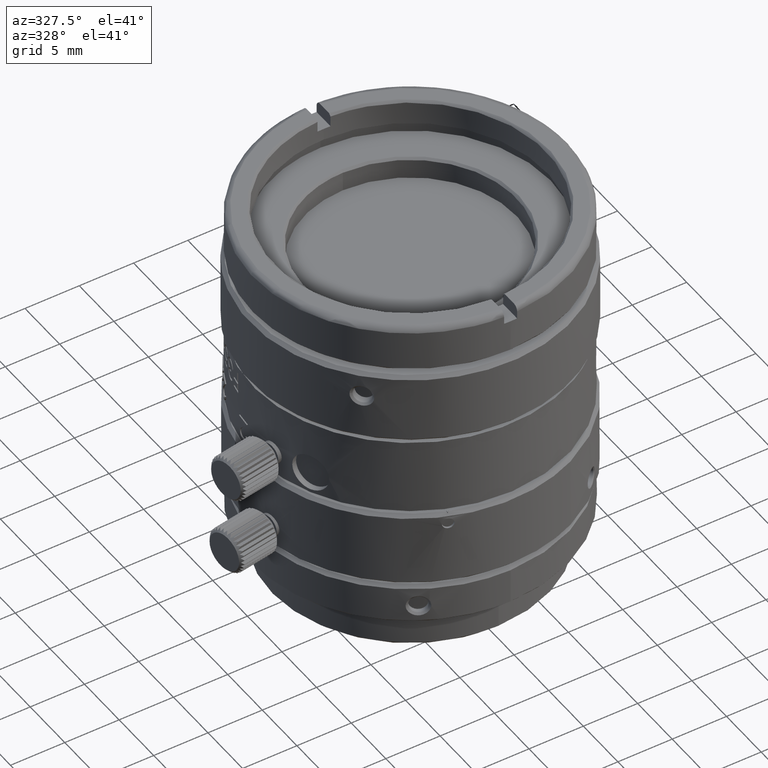
[diagram: clean part render]
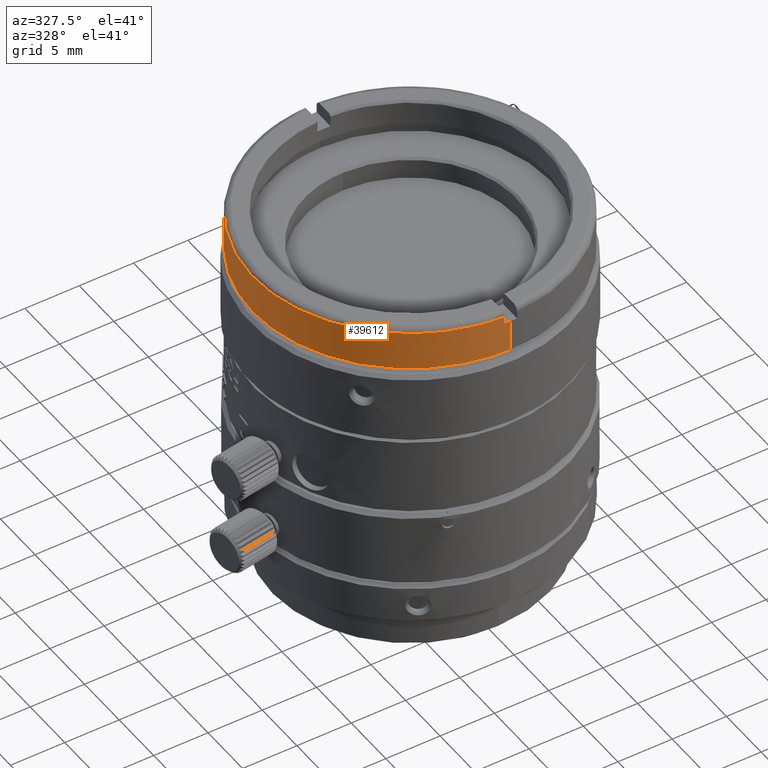
[diagram: same view with one face highlighted and labeled with its STEP entity id]
A machine part, auxiliary view. The second image highlights one B-rep face of the part: STEP entity #39612.
In plain terms, the highlighted face is a freeform B-spline surface patch.
Its self-contained STEP definition (entity closure, byte-faithful):
#90 =( BOUNDED_CURVE ( )  B_SPLINE_CURVE ( 3, ( #37819, #9087, #14555, #27344, #17894, #30695, #1938 ),
 .UNSPECIFIED., .F., .T. ) 
 B_SPLINE_CURVE_WITH_KNOTS ( ( 4, 3, 4 ),
 ( -4.712388980384689674, -3.141592653589792228, -1.570796326794894782 ),
 .UNSPECIFIED. ) 
 CURVE ( )  GEOMETRIC_REPRESENTATION_ITEM ( )  RATIONAL_B_SPLINE_CURVE ( ( 1.000000000000000000, 0.8047378540760217192, 0.8047378540760217192, 1.000000000000000000, 0.8047378540760217192, 0.8047378540760217192, 1.000000000000000000 ) ) 
 REPRESENTATION_ITEM ( '' )  );
#1072 = B_SPLINE_CURVE_WITH_KNOTS ( 'NONE', 1,
 ( #18068, #2118 ),
 .UNSPECIFIED., .F., .F.,
 ( 2, 2 ),
 ( -1.000000000000000000, 0.0000000000000000000 ),
 .UNSPECIFIED. ) ;
#1351 = B_SPLINE_CURVE_WITH_KNOTS ( 'NONE', 1,
 ( #5919, #9280 ),
 .UNSPECIFIED., .F., .F.,
 ( 2, 2 ),
 ( -1.000000000000000000, 0.0000000000000000000 ),
 .UNSPECIFIED. ) ;
#1407 = CARTESIAN_POINT ( 'NONE',  ( -0.5999999977533678752, -14.48758088878037853, 26.85340589753334939 ) ) ;
#1689 = ORIENTED_EDGE ( 'NONE', *, *, #24706, .T. ) ;
#1938 = CARTESIAN_POINT ( 'NONE',  ( 2.322999127010760338E-09, -14.50000000000000000, 23.95340589699999967 ) ) ;
#2118 = CARTESIAN_POINT ( 'NONE',  ( -0.5999999997343369307, 14.48758088869831973, 26.85340589753334939 ) ) ;
#2759 = CARTESIAN_POINT ( 'NONE',  ( -2.322999127010760338E-09, 14.50000000000000000, 23.95340589699999967 ) ) ;
#3064 = EDGE_CURVE ( 'NONE', #3179, #36596, #90, .T. ) ;
#3179 = VERTEX_POINT ( 'NONE', #2759 ) ;
#4242 = CARTESIAN_POINT ( 'NONE',  ( -0.5999999991057038962, -14.48758088821676004, 27.55340589672220020 ) ) ;
#5126 = CARTESIAN_POINT ( 'NONE',  ( -0.5999999997343369307, 14.48758088869831973, 26.85340589753334939 ) ) ;
#5328 = CARTESIAN_POINT ( 'NONE',  ( 0.0000000000000000000, 14.50000000000000000, 27.55340589699999754 ) ) ;
#5919 = CARTESIAN_POINT ( 'NONE',  ( 2.322999127010760338E-09, -14.50000000000000000, 23.95340589699999967 ) ) ;
#7281 = CARTESIAN_POINT ( 'NONE',  ( 2.322999127010760338E-09, -14.50000000000000000, 23.95340589699999967 ) ) ;
#7780 = EDGE_CURVE ( 'NONE', #15897, #14809, #34430, .T. ) ;
#7878 = FACE_OUTER_BOUND ( 'NONE', #36645, .T. ) ;
#8254 = CARTESIAN_POINT ( 'NONE',  ( -27.33757960749307614, -13.38024985855763305, 27.55340589656657713 ) ) ;
#8769 = EDGE_CURVE ( 'NONE', #36394, #27701, #21047, .T. ) ;
#8828 = ORIENTED_EDGE ( 'NONE', *, *, #31393, .T. ) ;
#8896 = CARTESIAN_POINT ( 'NONE',  ( -8.493903346971443113, 14.50000000000000355, 27.55340589700000109 ) ) ;
#9087 = CARTESIAN_POINT ( 'NONE',  ( -8.493903346971443113, 14.49999999999999822, 23.95340589700000677 ) ) ;
#9280 = CARTESIAN_POINT ( 'NONE',  ( 3.965332951296399337E-09, -14.49999999989143973, 26.85340589806665079 ) ) ;
#9320 = CARTESIAN_POINT ( 'NONE',  ( 8.680007819487239529E-10, 14.49999999989143973, 26.85340589806665079 ) ) ;
#9711 = ORIENTED_EDGE ( 'NONE', *, *, #28072, .T. ) ;
#10891 = CARTESIAN_POINT ( 'NONE',  ( 3.965332951296399337E-09, -14.49999999989143973, 26.85340589806665079 ) ) ;
#11094 = CARTESIAN_POINT ( 'NONE',  ( -0.2000856855999999795, -14.49999999967433872, 26.85340589699999825 ) ) ;
#11414 = CARTESIAN_POINT ( 'NONE',  ( 0.0000000000000000000, 14.50000000000000000, 23.95340589699999967 ) ) ;
#11484 = CARTESIAN_POINT ( 'NONE',  ( -0.5999999977533678752, -14.48758088878037853, 26.85340589753334939 ) ) ;
#11772 = ORIENTED_EDGE ( 'NONE', *, *, #28699, .T. ) ;
#14374 = CARTESIAN_POINT ( 'NONE',  ( -14.50000000174212822, 8.493903343997445177, 23.95340589700000677 ) ) ;
#14555 = CARTESIAN_POINT ( 'NONE',  ( -14.50000000174212644, 8.493903343997445177, 23.95340589700000677 ) ) ;
#14809 = VERTEX_POINT ( 'NONE', #38452 ) ;
#14980 = CARTESIAN_POINT ( 'NONE',  ( -14.49999999825787178, -8.493903349945444603, 27.55340589700000109 ) ) ;
#15187 = CARTESIAN_POINT ( 'NONE',  ( -14.49999999825787178, -8.493903349945444603, 23.95340589700000677 ) ) ;
#15897 = VERTEX_POINT ( 'NONE', #1407 ) ;
#17894 = CARTESIAN_POINT ( 'NONE',  ( -14.49999999825787178, -8.493903349945439274, 23.95340589700000677 ) ) ;
#17990 = CARTESIAN_POINT ( 'NONE',  ( -0.5999999991057038962, -14.48758088821676004, 27.55340589672220020 ) ) ;
#18068 = CARTESIAN_POINT ( 'NONE',  ( -0.6000000010866730626, 14.48758088813469946, 27.55340589672220020 ) ) ;
#19926 = ORIENTED_EDGE ( 'NONE', *, *, #8769, .F. ) ;
#20094 = B_SPLINE_CURVE_WITH_KNOTS ( 'NONE', 1,
 ( #27440, #17990 ),
 .UNSPECIFIED., .F., .F.,
 ( 2, 2 ),
 ( -1.000000000000000000, 0.0000000000000000000 ),
 .UNSPECIFIED. ) ;
#21047 =( BOUNDED_CURVE ( )  B_SPLINE_CURVE ( 3, ( #40544, #24592, #8254, #21245 ),
 .UNSPECIFIED., .F., .T. ) 
 B_SPLINE_CURVE_WITH_KNOTS ( ( 4, 4 ),
 ( 1.612187454851255142, 4.670997852328330424 ),
 .UNSPECIFIED. ) 
 CURVE ( )  GEOMETRIC_REPRESENTATION_ITEM ( )  RATIONAL_B_SPLINE_CURVE ( ( 0.9397289228042475795, 0.3391665309306119980, 0.3391665309306119980, 0.9397289228042476905 ) ) 
 REPRESENTATION_ITEM ( '' )  );
#21245 = CARTESIAN_POINT ( 'NONE',  ( -0.5999999991057038962, -14.48758088821676004, 27.55340589672220020 ) ) ;
#22104 = CARTESIAN_POINT ( 'NONE',  ( -0.2000856855999999795, 14.49999999967433872, 26.85340589699999825 ) ) ;
#23013 = B_SPLINE_CURVE_WITH_KNOTS ( 'NONE', 3,
 ( #9320, #22104, #30714, #5126 ),
 .UNSPECIFIED., .F., .F.,
 ( 4, 4 ),
 ( 1.570796326794895004, 1.612187454851255142 ),
 .UNSPECIFIED. ) ;
#24206 = CARTESIAN_POINT ( 'NONE',  ( 5.947999426944603969E-09, -14.50000000000000000, 23.95340589699999967 ) ) ;
#24592 = CARTESIAN_POINT ( 'NONE',  ( -27.33757960749307614, 13.38024985855763305, 27.55340589656657713 ) ) ;
#24614 = CARTESIAN_POINT ( 'NONE',  ( -8.493903346971443113, 14.50000000000000355, 23.95340589700000677 ) ) ;
#24706 = EDGE_CURVE ( 'NONE', #38922, #3179, #37491, .T. ) ;
#25032 = EDGE_CURVE ( 'NONE', #38922, #37157, #23013, .T. ) ;
#27344 = CARTESIAN_POINT ( 'NONE',  ( -14.49999999999999822, -2.973996493825530158E-09, 23.95340589699999967 ) ) ;
#27440 = CARTESIAN_POINT ( 'NONE',  ( -0.5999999977533678752, -14.48758088878037853, 26.85340589753334939 ) ) ;
#27559 = CARTESIAN_POINT ( 'NONE',  ( -14.50000000000000000, -2.973999713472301985E-09, 27.55340589699999754 ) ) ;
#27701 = VERTEX_POINT ( 'NONE', #4242 ) ;
#28072 = EDGE_CURVE ( 'NONE', #15897, #27701, #20094, .T. ) ;
#28699 = EDGE_CURVE ( 'NONE', #36394, #37157, #1072, .T. ) ;
#30695 = CARTESIAN_POINT ( 'NONE',  ( -8.493903341023447240, -14.50000000348425111, 23.95340589700000677 ) ) ;
#30714 = CARTESIAN_POINT ( 'NONE',  ( -0.4000856855999999628, 14.49586029631310957, 26.85340589699999825 ) ) ;
#30919 = CARTESIAN_POINT ( 'NONE',  ( -14.50000000174212822, 8.493903343997445177, 27.55340589700000109 ) ) ;
#31393 = EDGE_CURVE ( 'NONE', #36596, #14809, #1351, .T. ) ;
#31646 = CARTESIAN_POINT ( 'NONE',  ( 8.680007819487239529E-10, 14.49999999989143973, 26.85340589806665079 ) ) ;
#31850 = CARTESIAN_POINT ( 'NONE',  ( -2.322999127010760338E-09, 14.50000000000000000, 23.95340589699999967 ) ) ;
#32295 = CARTESIAN_POINT ( 'NONE',  ( -0.6000000010866730626, 14.48758088813469946, 27.55340589672220020 ) ) ;
#32466 = ORIENTED_EDGE ( 'NONE', *, *, #3064, .T. ) ;
#32733 = CARTESIAN_POINT ( 'NONE',  ( -0.5999999997343369307, 14.48758088869831973, 26.85340589753334939 ) ) ;
#32827 =( BOUNDED_SURFACE ( )  B_SPLINE_SURFACE ( 1, 3, ( 
 ( #11414, #24614, #14374, #40358, #15187, #40775, #24206 ),
 ( #5328, #8896, #30919, #27559, #14980, #33664, #37008 ) ),
 .UNSPECIFIED., .F., .F., .T. ) 
 B_SPLINE_SURFACE_WITH_KNOTS ( ( 2, 2 ),
 ( 4, 3, 4 ),
 ( 0.0000000000000000000, 1.000000000000000000 ),
 ( 0.0000000000000000000, 0.5000000000000000000, 1.000000000000000000 ),
 .UNSPECIFIED. ) 
 GEOMETRIC_REPRESENTATION_ITEM ( )  RATIONAL_B_SPLINE_SURFACE ( (
 ( 1.000000000000000000, 0.8047378540760217192, 0.8047378540760217192, 1.000000000000000000, 0.8047378540760217192, 0.8047378540760217192, 1.000000000000000000),
 ( 1.000000000000000000, 0.8047378540760217192, 0.8047378540760217192, 1.000000000000000000, 0.8047378540760217192, 0.8047378540760217192, 1.000000000000000000) ) ) 
 REPRESENTATION_ITEM ( '' )  SURFACE ( )  );
#33057 = ORIENTED_EDGE ( 'NONE', *, *, #7780, .F. ) ;
#33664 = CARTESIAN_POINT ( 'NONE',  ( -8.493903341023443687, -14.50000000348425999, 27.55340589700000109 ) ) ;
#34266 = CARTESIAN_POINT ( 'NONE',  ( 8.680007819487239529E-10, 14.49999999989143973, 26.85340589806665079 ) ) ;
#34430 = B_SPLINE_CURVE_WITH_KNOTS ( 'NONE', 3,
 ( #11484, #39822, #11094, #10891 ),
 .UNSPECIFIED., .F., .F.,
 ( 4, 4 ),
 ( 4.670997852328330424, 4.712388980384689674 ),
 .UNSPECIFIED. ) ;
#36394 = VERTEX_POINT ( 'NONE', #32295 ) ;
#36596 = VERTEX_POINT ( 'NONE', #7281 ) ;
#36645 = EDGE_LOOP ( 'NONE', ( #8828, #33057, #9711, #19926, #11772, #40429, #1689, #32466 ) ) ;
#37008 = CARTESIAN_POINT ( 'NONE',  ( 5.947999426944603969E-09, -14.50000000000000000, 27.55340589699999754 ) ) ;
#37157 = VERTEX_POINT ( 'NONE', #32733 ) ;
#37491 = B_SPLINE_CURVE_WITH_KNOTS ( 'NONE', 1,
 ( #31646, #31850 ),
 .UNSPECIFIED., .F., .F.,
 ( 2, 2 ),
 ( -1.000000000000000000, 0.0000000000000000000 ),
 .UNSPECIFIED. ) ;
#37819 = CARTESIAN_POINT ( 'NONE',  ( -2.322999127010760338E-09, 14.50000000000000000, 23.95340589699999967 ) ) ;
#38452 = CARTESIAN_POINT ( 'NONE',  ( 3.965332951296399337E-09, -14.49999999989143973, 26.85340589806665079 ) ) ;
#38922 = VERTEX_POINT ( 'NONE', #34266 ) ;
#39612 = ADVANCED_FACE ( 'NONE', ( #7878 ), #32827, .F. ) ;
#39822 = CARTESIAN_POINT ( 'NONE',  ( -0.4000856855999999628, -14.49586029631311135, 26.85340589699999825 ) ) ;
#40358 = CARTESIAN_POINT ( 'NONE',  ( -14.50000000000000000, -2.973999713472301985E-09, 23.95340589699999967 ) ) ;
#40429 = ORIENTED_EDGE ( 'NONE', *, *, #25032, .F. ) ;
#40544 = CARTESIAN_POINT ( 'NONE',  ( -0.6000000010866730626, 14.48758088813470124, 27.55340589672220020 ) ) ;
#40775 = CARTESIAN_POINT ( 'NONE',  ( -8.493903341023443687, -14.50000000348425999, 23.95340589700000677 ) ) ;